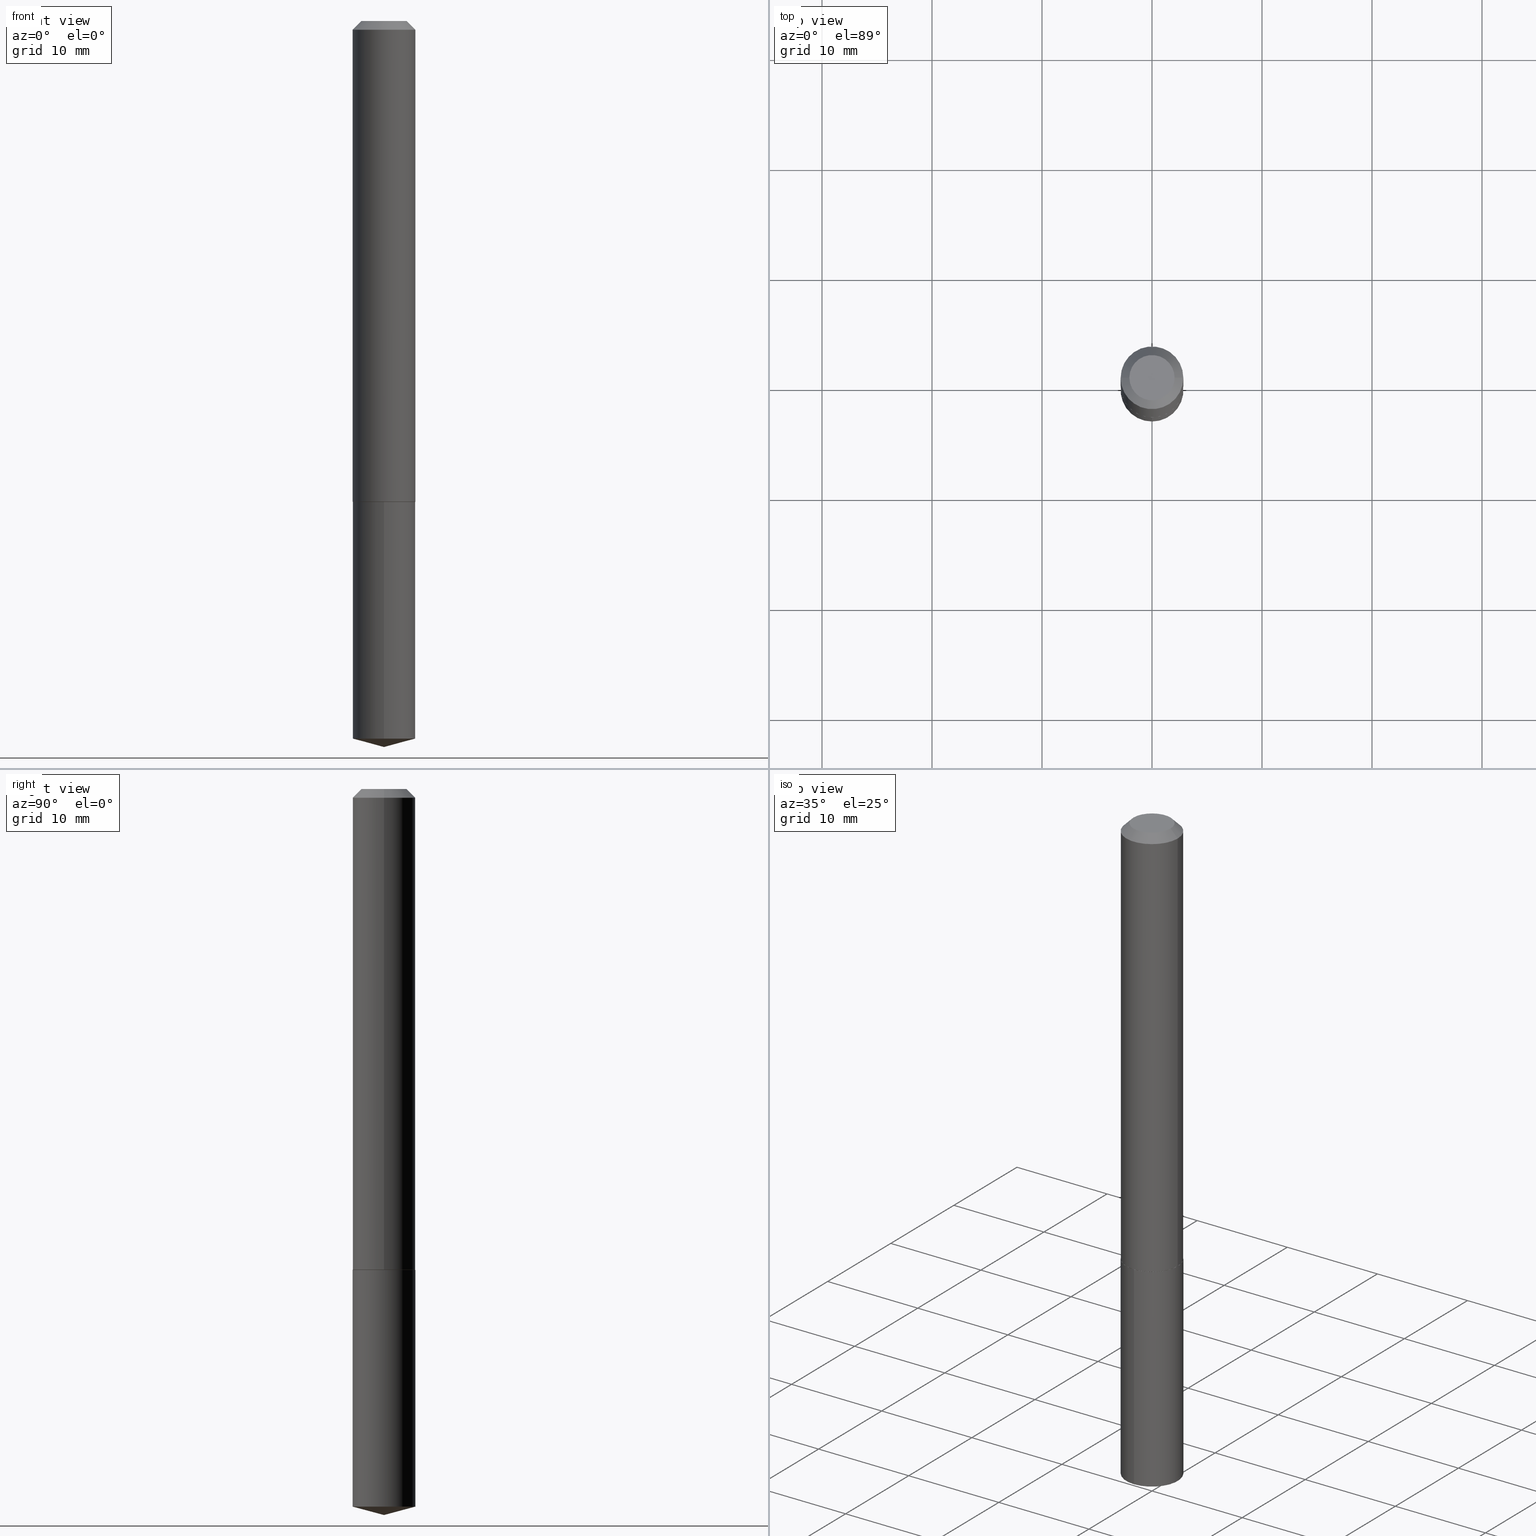
[diagram: canonical four-view strip — front | top / right | iso, engineering-drawing reading convention]
A machine part, canonical four-view strip (front | top / right | iso — engineering-drawing reading convention). The complete STEP part file that produces these views, byte-faithful:
ISO-10303-21;
HEADER;
FILE_DESCRIPTION (( 'STEP AP203' ),
    '1' );
FILE_NAME ('68992.STEP',
    '2024-04-23T14:08:13',
    ( '' ),
    ( '' ),
    'SwSTEP 2.0',
    'SolidWorks 2023',
    '' );
FILE_SCHEMA (( 'CONFIG_CONTROL_DESIGN' ));
ENDSEC;

DATA;
#1 = EDGE_CURVE ( 'NONE', #49, #203, #334, .T. ) ;
#2 = AXIS2_PLACEMENT_3D ( 'NONE', #128, #96, #64 ) ;
#3 = CLOSED_SHELL ( 'NONE', ( #29, #107, #121, #370, #163 ) ) ;
#4 = EDGE_LOOP ( 'NONE', ( #112, #20, #109, #178 ) ) ;
#5 = CARTESIAN_POINT ( 'NONE',  ( 6.354544332871978215E-29, -9.071924013680369190E-15, -2.598399999999999821 ) ) ;
#6 = EDGE_LOOP ( 'NONE', ( #259, #85 ) ) ;
#7 = DIRECTION ( 'NONE',  ( -0.7071067811865452413, 2.468850131082233000E-15, -0.7071067811865497932 ) ) ;
#8 = ADVANCED_FACE ( 'NONE', ( #348 ), #226, .T. ) ;
#9 = CIRCLE ( 'NONE', #62, 0.1122000000000002023 ) ;
#10 = FACE_OUTER_BOUND ( 'NONE', #6, .T. ) ;
#11 = DIRECTION ( 'NONE',  ( -2.445468806185136597E-29, 3.491481338843145583E-15, 1.000000000000000000 ) ) ;
#12 = ORIENTED_EDGE ( 'NONE', *, *, #209, .T. ) ;
#13 = CARTESIAN_POINT ( 'NONE',  ( -0.1122000000000000081, 6.743796205975501000E-16, -0.03125000000000021511 ) ) ;
#14 = ORIENTED_EDGE ( 'NONE', *, *, #209, .F. ) ;
#15 = AXIS2_PLACEMENT_3D ( 'NONE', #229, #283, #222 ) ;
#16 = CARTESIAN_POINT ( 'NONE',  ( 0.000000000000000000, 0.000000000000000000, 0.000000000000000000 ) ) ;
#17 = DIRECTION ( 'NONE',  ( 1.000000000000000000, -6.982962677686271444E-15, 0.000000000000000000 ) ) ;
#18 = EDGE_LOOP ( 'NONE', ( #75, #199, #264, #82 ) ) ;
#19 = PERSON_AND_ORGANIZATION ( #175, #213 ) ;
#20 = ORIENTED_EDGE ( 'NONE', *, *, #265, .T. ) ;
#21 =( CONVERSION_BASED_UNIT ( 'INCH', #356 ) LENGTH_UNIT ( ) NAMED_UNIT ( #306 ) );
#22 = DIRECTION ( 'NONE',  ( -2.445468806185136597E-29, 3.491481338843145583E-15, 1.000000000000000000 ) ) ;
#23 = ADVANCED_BREP_SHAPE_REPRESENTATION ( '68992', ( #137, #254, #382 ), #102 ) ;
#24 = ORIENTED_EDGE ( 'NONE', *, *, #333, .F. ) ;
#25 = AXIS2_PLACEMENT_3D ( 'NONE', #180, #116, #154 ) ;
#26 = LOCAL_TIME ( 10, 8, 13.00000000000000000, #248 ) ;
#27 = CARTESIAN_POINT ( 'NONE',  ( 4.207184534160907865E-29, -6.006744495345746138E-15, -1.720399999999999485 ) ) ;
#28 = CARTESIAN_POINT ( 'NONE',  ( 0.000000000000000000, 0.000000000000000000, 0.000000000000000000 ) ) ;
#29 = ADVANCED_FACE ( 'NONE', ( #271 ), #358, .T. ) ;
#30 = PLANE ( 'NONE',  #266 ) ;
#31 = VECTOR ( 'NONE', #367, 39.37007874015748143 ) ;
#32 = CIRCLE ( 'NONE', #236, 0.1117000000000003407 ) ;
#33 = DIRECTION ( 'NONE',  ( -6.982962677686265133E-15, -1.000000000000000000, 2.434802133390608632E-15 ) ) ;
#34 = CARTESIAN_POINT ( 'NONE',  ( -7.834884124363362890E-16, -0.1122000000000089870, -2.568336100609227568 ) ) ;
#35 = SHAPE_DEFINITION_REPRESENTATION ( #368, #23 ) ;
#36 = LINE ( 'NONE', #211, #360 ) ;
#37 = CARTESIAN_POINT ( 'NONE',  ( 0.1122000000000002023, -6.788487167112725412E-15, -1.719899999999999540 ) ) ;
#38 = VECTOR ( 'NONE', #377, 39.37007874015748854 ) ;
#39 = DIRECTION ( 'NONE',  ( -2.445560472934105133E-29, 3.491350066841275320E-15, 1.000000000000000000 ) ) ;
#40 = APPLICATION_CONTEXT ( 'configuration controlled 3d designs of mechanical parts and assemblies' ) ;
#41 = DIRECTION ( 'NONE',  ( -2.445560472934105133E-29, 3.491350066841275320E-15, 1.000000000000000000 ) ) ;
#42 = CC_DESIGN_DATE_AND_TIME_ASSIGNMENT ( #234, #247, ( #63 ) ) ;
#43 = ORIENTED_EDGE ( 'NONE', *, *, #160, .F. ) ;
#44 = FACE_OUTER_BOUND ( 'NONE', #4, .T. ) ;
#45 = FACE_OUTER_BOUND ( 'NONE', #52, .T. ) ;
#46 = AXIS2_PLACEMENT_3D ( 'NONE', #27, #210, #162 ) ;
#47 = APPROVAL_PERSON_ORGANIZATION ( #55, #337, #294 ) ;
#48 = CARTESIAN_POINT ( 'NONE',  ( -0.1122000000000002023, -5.207769805153490886E-15, -1.719899999999999540 ) ) ;
#49 = VERTEX_POINT ( 'NONE', #34 ) ;
#50 = EDGE_CURVE ( 'NONE', #318, #371, #277, .T. ) ;
#51 = DIRECTION ( 'NONE',  ( 1.000000000000000000, -6.982962677686267499E-15, 0.000000000000000000 ) ) ;
#52 = EDGE_LOOP ( 'NONE', ( #316, #12, #350 ) ) ;
#53 = CARTESIAN_POINT ( 'NONE',  ( 7.642090019328603538E-31, -1.091087918388490390E-16, -0.03125000000000021511 ) ) ;
#54 = ORIENTED_EDGE ( 'NONE', *, *, #274, .T. ) ;
#55 = PERSON_AND_ORGANIZATION ( #175, #213 ) ;
#56 = ORIENTED_EDGE ( 'NONE', *, *, #160, .T. ) ;
#57 = PERSON_AND_ORGANIZATION_ROLE ( 'classification_officer' ) ;
#58 = EDGE_CURVE ( 'NONE', #291, #170, #362, .T. ) ;
#59 = ORIENTED_EDGE ( 'NONE', *, *, #99, .F. ) ;
#60 = PERSON_AND_ORGANIZATION ( #175, #213 ) ;
#61 = DIRECTION ( 'NONE',  ( -1.000000000000000000, 6.982962677686266711E-15, 0.000000000000000000 ) ) ;
#62 = AXIS2_PLACEMENT_3D ( 'NONE', #276, #142, #17 ) ;
#63 = SECURITY_CLASSIFICATION ( '', '', #289 ) ;
#64 = DIRECTION ( 'NONE',  ( 1.000000000000000000, -6.982962677686266711E-15, 0.000000000000000000 ) ) ;
#65 = APPROVAL ( #297, 'UNSPECIFIED' ) ;
#66 = APPROVAL_STATUS ( 'not_yet_approved' ) ;
#67 = DIRECTION ( 'NONE',  ( 1.000000000000000000, -6.982962677686265922E-15, 4.876172822216040700E-29 ) ) ;
#68 = DIRECTION ( 'NONE',  ( -1.000000000000000000, 6.982962677686265922E-15, -4.876176775795935793E-29 ) ) ;
#69 = APPROVAL_PERSON_ORGANIZATION ( #113, #65, #123 ) ;
#70 = LINE ( 'NONE', #253, #125 ) ;
#71 = CARTESIAN_POINT ( 'NONE',  ( 6.354547098618619231E-29, -9.071924013680369190E-15, -2.598399999999999821 ) ) ;
#72 = DIRECTION ( 'NONE',  ( -6.982962677686266711E-15, -1.000000000000000000, 3.510303681827586791E-15 ) ) ;
#73 = DIRECTION ( 'NONE',  ( -6.745023994389845444E-15, -0.9659258262890684232, 0.2588190451025204619 ) ) ;
#74 = VECTOR ( 'NONE', #214, 39.37007874015748143 ) ;
#75 = ORIENTED_EDGE ( 'NONE', *, *, #223, .F. ) ;
#76 = CARTESIAN_POINT ( 'NONE',  ( 4.207184534160907865E-29, -6.006744495345746138E-15, -1.720399999999999485 ) ) ;
#77 = ORIENTED_EDGE ( 'NONE', *, *, #1, .T. ) ;
#78 = CARTESIAN_POINT ( 'NONE',  ( -0.1122000000000000081, -2.259824823734752725E-15, -0.03125000000000021511 ) ) ;
#79 = ORIENTED_EDGE ( 'NONE', *, *, #58, .F. ) ;
#80 = DIRECTION ( 'NONE',  ( -2.445468806185136597E-29, 3.491481338843145583E-15, 1.000000000000000000 ) ) ;
#81 = LINE ( 'NONE', #159, #74 ) ;
#82 = ORIENTED_EDGE ( 'NONE', *, *, #311, .F. ) ;
#83 = AXIS2_PLACEMENT_3D ( 'NONE', #232, #249, #72 ) ;
#84 = ADVANCED_FACE ( 'NONE', ( #127 ), #328, .T. ) ;
#85 = ORIENTED_EDGE ( 'NONE', *, *, #374, .F. ) ;
#86 = APPROVAL_DATE_TIME ( #88, #337 ) ;
#87 = ORIENTED_EDGE ( 'NONE', *, *, #300, .T. ) ;
#88 = DATE_AND_TIME ( #238, #185 ) ;
#89 = DIRECTION ( 'NONE',  ( -2.445468806185136597E-29, 3.491481338843145583E-15, 1.000000000000000000 ) ) ;
#90 = AXIS2_PLACEMENT_3D ( 'NONE', #110, #139, #190 ) ;
#91 = LOCAL_TIME ( 10, 8, 13.00000000000000000, #379 ) ;
#92 = DATE_AND_TIME ( #97, #26 ) ;
#93 = DIRECTION ( 'NONE',  ( 2.445560472934104853E-29, -3.491350066841275320E-15, -1.000000000000000000 ) ) ;
#94 = EDGE_CURVE ( 'NONE', #293, #346, #258, .T. ) ;
#95 = AXIS2_PLACEMENT_3D ( 'NONE', #216, #336, #68 ) ;
#96 = DIRECTION ( 'NONE',  ( -2.445468806185136597E-29, 3.491481338843145583E-15, 1.000000000000000000 ) ) ;
#97 = CALENDAR_DATE ( 2024, 23, 4 ) ;
#98 = DIRECTION ( 'NONE',  ( -0.7071067811865232589, 7.493145998870265808E-15, 0.7071067811865715536 ) ) ;
#99 = EDGE_CURVE ( 'NONE', #371, #318, #9, .T. ) ;
#100 = CARTESIAN_POINT ( 'NONE',  ( 6.280863545384714568E-29, -8.967186256884906967E-15, -2.568336100609228456 ) ) ;
#101 = CIRCLE ( 'NONE', #90, 0.1122000000000000081 ) ;
#102 =( GEOMETRIC_REPRESENTATION_CONTEXT ( 3 ) GLOBAL_UNCERTAINTY_ASSIGNED_CONTEXT ( ( #383 ) ) GLOBAL_UNIT_ASSIGNED_CONTEXT ( ( #21, #324, #376 ) ) REPRESENTATION_CONTEXT ( 'NONE', 'WORKASPACE' ) );
#103 = CARTESIAN_POINT ( 'NONE',  ( 0.1122000000000000081, -8.925972042752483013E-16, -0.03125000000000021511 ) ) ;
#104 = CYLINDRICAL_SURFACE ( 'NONE', #321, 0.1122000000000000081 ) ;
#105 = DIRECTION ( 'NONE',  ( -6.982962677686266711E-15, -1.000000000000000000, 3.510303681827586791E-15 ) ) ;
#106 = CARTESIAN_POINT ( 'NONE',  ( 4.207184534160907865E-29, -6.006744495345746138E-15, -1.720399999999999485 ) ) ;
#107 = ADVANCED_FACE ( 'NONE', ( #150 ), #372, .T. ) ;
#108 = AXIS2_PLACEMENT_3D ( 'NONE', #260, #80, #231 ) ;
#109 = ORIENTED_EDGE ( 'NONE', *, *, #333, .T. ) ;
#110 = CARTESIAN_POINT ( 'NONE',  ( 4.207184534160907865E-29, -6.006744495345746138E-15, -1.720399999999999485 ) ) ;
#111 = EDGE_CURVE ( 'NONE', #322, #371, #261, .T. ) ;
#112 = ORIENTED_EDGE ( 'NONE', *, *, #145, .F. ) ;
#113 = PERSON_AND_ORGANIZATION ( #175, #213 ) ;
#114 = ORIENTED_EDGE ( 'NONE', *, *, #223, .T. ) ;
#115 = CALENDAR_DATE ( 2024, 23, 4 ) ;
#116 = DIRECTION ( 'NONE',  ( -2.445560472934105133E-29, 3.491350066841275320E-15, 1.000000000000000000 ) ) ;
#117 = CONICAL_SURFACE ( 'NONE', #83, 146.9311341562572579, 1.308996938995750980 ) ;
#118 = CONICAL_SURFACE ( 'NONE', #304, 0.1122000000000000081, 0.7853981633974450594 ) ;
#119 = VERTEX_POINT ( 'NONE', #345 ) ;
#120 = PERSON_AND_ORGANIZATION ( #175, #213 ) ;
#121 = ADVANCED_FACE ( 'NONE', ( #45 ), #117, .T. ) ;
#122 = DIRECTION ( 'NONE',  ( 1.000000000000000000, -6.982962677686271444E-15, 0.000000000000000000 ) ) ;
#123 = APPROVAL_ROLE ( '' ) ;
#124 = DIRECTION ( 'NONE',  ( 1.000000000000000000, -6.982962677686266711E-15, 0.000000000000000000 ) ) ;
#125 = VECTOR ( 'NONE', #73, 39.37007874015748143 ) ;
#126 = APPROVAL_ROLE ( '' ) ;
#127 = FACE_OUTER_BOUND ( 'NONE', #384, .T. ) ;
#128 = CARTESIAN_POINT ( 'NONE',  ( 7.642090019328603538E-31, -1.091087918388490390E-16, -0.03125000000000021511 ) ) ;
#129 = VECTOR ( 'NONE', #218, 39.37007874015748143 ) ;
#130 = CARTESIAN_POINT ( 'NONE',  ( -8.992752175383544669E-28, 1.283825771869626987E-13, 36.77167874015748339 ) ) ;
#131 = EDGE_LOOP ( 'NONE', ( #77, #355, #43, #24 ) ) ;
#132 = APPLICATION_CONTEXT ( 'configuration controlled 3d designs of mechanical parts and assemblies' ) ;
#133 = ADVANCED_FACE ( 'NONE', ( #310 ), #298, .T. ) ;
#134 = DIRECTION ( 'NONE',  ( -1.000000000000000000, 6.982962677686266711E-15, 0.000000000000000000 ) ) ;
#135 = CARTESIAN_POINT ( 'NONE',  ( -0.1122000000000001052, 7.972289495228331561E-16, -5.519045171266009325E-30 ) ) ;
#136 = CIRCLE ( 'NONE', #354, 0.1117000000000003407 ) ;
#137 = MANIFOLD_SOLID_BREP ( 'Body-Move/Copy2[1]', #3 ) ;
#138 = EDGE_CURVE ( 'NONE', #346, #293, #192, .T. ) ;
#139 = DIRECTION ( 'NONE',  ( -2.445560472934105133E-29, 3.491350066841275320E-15, 1.000000000000000000 ) ) ;
#140 = CC_DESIGN_PERSON_AND_ORGANIZATION_ASSIGNMENT ( #19, #57, ( #63 ) ) ;
#141 = DIRECTION ( 'NONE',  ( -2.445468806185136877E-29, 3.491481338843145188E-15, 1.000000000000000000 ) ) ;
#142 = DIRECTION ( 'NONE',  ( -2.445468806185136597E-29, 3.491481338843145583E-15, 1.000000000000000000 ) ) ;
#143 = ORIENTED_EDGE ( 'NONE', *, *, #50, .F. ) ;
#144 = LINE ( 'NONE', #135, #320 ) ;
#145 = EDGE_CURVE ( 'NONE', #203, #119, #81, .T. ) ;
#146 = AXIS2_PLACEMENT_3D ( 'NONE', #270, #388, #124 ) ;
#147 = CC_DESIGN_SECURITY_CLASSIFICATION ( #63, ( #339 ) ) ;
#148 = ORIENTED_EDGE ( 'NONE', *, *, #296, .T. ) ;
#149 = COORDINATED_UNIVERSAL_TIME_OFFSET ( 5, 0, .BEHIND. ) ;
#150 = FACE_OUTER_BOUND ( 'NONE', #262, .T. ) ;
#151 = CC_DESIGN_PERSON_AND_ORGANIZATION_ASSIGNMENT ( #329, #179, ( #339 ) ) ;
#152 = ORIENTED_EDGE ( 'NONE', *, *, #374, .T. ) ;
#153 = COORDINATED_UNIVERSAL_TIME_OFFSET ( 5, 0, .BEHIND. ) ;
#154 = DIRECTION ( 'NONE',  ( -6.982962677686265133E-15, -1.000000000000000000, 4.869604266781217263E-15 ) ) ;
#155 = VERTEX_POINT ( 'NONE', #5 ) ;
#156 = DIRECTION ( 'NONE',  ( 1.000000000000000000, 0.000000000000000000, 0.000000000000000000 ) ) ;
#157 = VECTOR ( 'NONE', #141, 39.37007874015748143 ) ;
#158 = LOCAL_TIME ( 10, 8, 13.00000000000000000, #269 ) ;
#159 = CARTESIAN_POINT ( 'NONE',  ( 7.972289495228743741E-16, 0.1121999999999939851, -1.720399999999999707 ) ) ;
#160 = EDGE_CURVE ( 'NONE', #224, #119, #168, .T. ) ;
#161 = DIRECTION ( 'NONE',  ( 6.982962677686265922E-15, 1.000000000000000000, -3.491350066841275320E-15 ) ) ;
#162 = DIRECTION ( 'NONE',  ( -6.982962677686265133E-15, -1.000000000000000000, 2.434802133390608632E-15 ) ) ;
#163 = ADVANCED_FACE ( 'NONE', ( #273 ), #30, .F. ) ;
#164 = PLANE ( 'NONE',  #95 ) ;
#165 = ORIENTED_EDGE ( 'NONE', *, *, #280, .F. ) ;
#166 = CARTESIAN_POINT ( 'NONE',  ( -0.08094999999999999418, 6.198252246781266344E-16, 2.388061258295906424E-19 ) ) ;
#167 = CARTESIAN_POINT ( 'NONE',  ( -5.839929314523198503E-48, 8.337871319499114970E-34, 2.388061258337343288E-19 ) ) ;
#168 = CIRCLE ( 'NONE', #299, 0.1122000000000000081 ) ;
#169 = DIRECTION ( 'NONE',  ( -2.445560472934105133E-29, 3.491350066841275320E-15, 1.000000000000000000 ) ) ;
#170 = VERTEX_POINT ( 'NONE', #302 ) ;
#171 = CARTESIAN_POINT ( 'NONE',  ( -7.834884124363568980E-16, -0.1122000000000060171, -1.720399999999999263 ) ) ;
#172 = DIRECTION ( 'NONE',  ( -2.445560472934105133E-29, 3.491350066841275320E-15, 1.000000000000000000 ) ) ;
#173 = ORIENTED_EDGE ( 'NONE', *, *, #1, .F. ) ;
#174 = FACE_OUTER_BOUND ( 'NONE', #18, .T. ) ;
#175 = PERSON ( 'UNSPECIFIED', 'UNSPECIFIED', 'UNSPECIFIED', ('UNSPECIFIED'), ('UNSPECIFIED'), ('UNSPECIFIED') ) ;
#176 = PRODUCT_RELATED_PRODUCT_CATEGORY ( 'detail', '', ( #308 ) ) ;
#177 = CONICAL_SURFACE ( 'NONE', #108, 0.1122000000000002023, 0.7853981633974141952 ) ;
#178 = ORIENTED_EDGE ( 'NONE', *, *, #278, .F. ) ;
#179 = PERSON_AND_ORGANIZATION_ROLE ( 'design_supplier' ) ;
#180 = CARTESIAN_POINT ( 'NONE',  ( 6.280863545384714568E-29, -8.967186256884906967E-15, -2.568336100609228456 ) ) ;
#181 = EDGE_LOOP ( 'NONE', ( #380, #364, #87, #375 ) ) ;
#182 = DATE_AND_TIME ( #327, #91 ) ;
#183 =( LENGTH_UNIT ( ) NAMED_UNIT ( * ) SI_UNIT ( $, .METRE. ) );
#184 = DIRECTION ( 'NONE',  ( -2.445468806185136597E-29, 3.491481338843145583E-15, 1.000000000000000000 ) ) ;
#185 = LOCAL_TIME ( 10, 8, 13.00000000000000000, #149 ) ;
#186 = CARTESIAN_POINT ( 'NONE',  ( 4.207184534160907865E-29, -6.006744495345746138E-15, -1.720399999999999485 ) ) ;
#187 = EDGE_CURVE ( 'NONE', #378, #318, #36, .T. ) ;
#188 = CIRCLE ( 'NONE', #295, 0.1122000000000000081 ) ;
#189 = DIRECTION ( 'NONE',  ( -2.445468806185136597E-29, 3.491481338843145583E-15, 1.000000000000000000 ) ) ;
#190 = DIRECTION ( 'NONE',  ( -6.982962677686265133E-15, -1.000000000000000000, 2.434802133390608632E-15 ) ) ;
#191 = LINE ( 'NONE', #71, #129 ) ;
#192 = CIRCLE ( 'NONE', #146, 0.1122000000000000081 ) ;
#193 = CC_DESIGN_APPROVAL ( #65, ( #339 ) ) ;
#194 = PLANE ( 'NONE',  #15 ) ;
#195 = ORIENTED_EDGE ( 'NONE', *, *, #58, .T. ) ;
#196 = DIRECTION ( 'NONE',  ( -2.445468806185136597E-29, 3.491481338843145583E-15, 1.000000000000000000 ) ) ;
#197 = ORIENTED_EDGE ( 'NONE', *, *, #311, .T. ) ;
#198 = VECTOR ( 'NONE', #7, 39.37007874015748143 ) ;
#199 = ORIENTED_EDGE ( 'NONE', *, *, #280, .T. ) ;
#200 = APPLICATION_PROTOCOL_DEFINITION ( 'international standard', 'config_control_design', 1994, #132 ) ;
#201 = ADVANCED_FACE ( 'NONE', ( #275 ), #164, .F. ) ;
#202 = ORIENTED_EDGE ( 'NONE', *, *, #187, .T. ) ;
#203 = VERTEX_POINT ( 'NONE', #279 ) ;
#204 = PERSON_AND_ORGANIZATION_ROLE ( 'creator' ) ;
#205 = CLOSED_SHELL ( 'NONE', ( #381, #363, #389, #290, #84, #133, #8, #201 ) ) ;
#206 = CC_DESIGN_APPROVAL ( #337, ( #305 ) ) ;
#207 = DATE_TIME_ROLE ( 'creation_date' ) ;
#208 = DIRECTION ( 'NONE',  ( 1.000000000000000000, -6.982962677686271444E-15, 0.000000000000000000 ) ) ;
#209 = EDGE_CURVE ( 'NONE', #155, #49, #70, .T. ) ;
#210 = DIRECTION ( 'NONE',  ( -2.445560472934105133E-29, 3.491350066841275320E-15, 1.000000000000000000 ) ) ;
#211 = CARTESIAN_POINT ( 'NONE',  ( -0.1122000000000002023, -5.207769805153490886E-15, -1.719899999999999540 ) ) ;
#212 = AXIS2_PLACEMENT_3D ( 'NONE', #28, #22, #235 ) ;
#213 = ORGANIZATION ( 'UNSPECIFIED', 'UNSPECIFIED', '' ) ;
#214 = DIRECTION ( 'NONE',  ( -2.445560472934105133E-29, 3.491350066841275320E-15, 1.000000000000000000 ) ) ;
#215 = PERSON_AND_ORGANIZATION ( #175, #213 ) ;
#216 = CARTESIAN_POINT ( 'NONE',  ( -2.919964657261599251E-48, 4.168935659749557485E-34, 1.194030629168671644E-19 ) ) ;
#217 = AXIS2_PLACEMENT_3D ( 'NONE', #130, #172, #105 ) ;
#218 = DIRECTION ( 'NONE',  ( 6.863315791527699781E-15, 0.9659258262890701996, 0.2588190451025136896 ) ) ;
#219 = LOCAL_TIME ( 10, 8, 13.00000000000000000, #153 ) ;
#220 = CC_DESIGN_PERSON_AND_ORGANIZATION_ASSIGNMENT ( #120, #240, ( #308 ) ) ;
#221 = CARTESIAN_POINT ( 'NONE',  ( -7.834884124363568980E-16, -0.1122000000000060171, -1.720399999999999263 ) ) ;
#222 = DIRECTION ( 'NONE',  ( 1.000000000000000000, -6.982962677686265922E-15, 4.876176775795935793E-29 ) ) ;
#223 = EDGE_CURVE ( 'NONE', #170, #291, #312, .T. ) ;
#224 = VERTEX_POINT ( 'NONE', #171 ) ;
#225 = DIRECTION ( 'NONE',  ( -6.982962677686265133E-15, -1.000000000000000000, 2.434802133390608632E-15 ) ) ;
#226 = CONICAL_SURFACE ( 'NONE', #251, 0.1122000000000000081, 0.7853981633974450594 ) ;
#227 = AXIS2_PLACEMENT_3D ( 'NONE', #245, #330, #122 ) ;
#228 = EDGE_LOOP ( 'NONE', ( #165, #79, #197, #326 ) ) ;
#229 = CARTESIAN_POINT ( 'NONE',  ( 4.207184534160907865E-29, -6.006744495345746138E-15, -1.720399999999999485 ) ) ;
#230 = ORIENTED_EDGE ( 'NONE', *, *, #138, .F. ) ;
#231 = DIRECTION ( 'NONE',  ( 1.000000000000000000, -6.982962677686271444E-15, 0.000000000000000000 ) ) ;
#232 = CARTESIAN_POINT ( 'NONE',  ( -8.992752175383544669E-28, 1.283825771869626987E-13, 36.77167874015748339 ) ) ;
#233 = ORIENTED_EDGE ( 'NONE', *, *, #111, .T. ) ;
#234 = DATE_AND_TIME ( #115, #219 ) ;
#235 = DIRECTION ( 'NONE',  ( 1.000000000000000000, -6.982962677686266711E-15, 4.876176775795935232E-29 ) ) ;
#236 = AXIS2_PLACEMENT_3D ( 'NONE', #76, #315, #51 ) ;
#237 = ORIENTED_EDGE ( 'NONE', *, *, #300, .F. ) ;
#238 = CALENDAR_DATE ( 2024, 23, 4 ) ;
#239 = ORIENTED_EDGE ( 'NONE', *, *, #111, .F. ) ;
#240 = PERSON_AND_ORGANIZATION_ROLE ( 'design_owner' ) ;
#241 = CARTESIAN_POINT ( 'NONE',  ( 4.205961799757815063E-29, -6.004998754676324634E-15, -1.719899999999999540 ) ) ;
#242 = APPROVAL_DATE_TIME ( #319, #65 ) ;
#243 = CC_DESIGN_DATE_AND_TIME_ASSIGNMENT ( #182, #207, ( #305 ) ) ;
#244 = AXIS2_PLACEMENT_3D ( 'NONE', #331, #184, #67 ) ;
#245 = CARTESIAN_POINT ( 'NONE',  ( 4.205961799757815063E-29, -6.004998754676324634E-15, -1.719899999999999540 ) ) ;
#246 = CC_DESIGN_APPROVAL ( #325, ( #63 ) ) ;
#247 = DATE_TIME_ROLE ( 'classification_date' ) ;
#248 = COORDINATED_UNIVERSAL_TIME_OFFSET ( 5, 0, .BEHIND. ) ;
#249 = DIRECTION ( 'NONE',  ( -2.445560472934105133E-29, 3.491350066841275320E-15, 1.000000000000000000 ) ) ;
#250 = CARTESIAN_POINT ( 'NONE',  ( 0.000000000000000000, 0.000000000000000000, 0.000000000000000000 ) ) ;
#251 = AXIS2_PLACEMENT_3D ( 'NONE', #323, #268, #61 ) ;
#252 = DIRECTION ( 'NONE',  ( 0.7071067811865452413, -7.319954787623248157E-15, -0.7071067811865497932 ) ) ;
#253 = CARTESIAN_POINT ( 'NONE',  ( 6.354228925922127120E-29, -9.072375694384404603E-15, -2.598399999999999821 ) ) ;
#254 = MANIFOLD_SOLID_BREP ( 'Body-Move/Copy2[2]', #205 ) ;
#255 = CYLINDRICAL_SURFACE ( 'NONE', #335, 0.1122000000000001052 ) ;
#256 = ORIENTED_EDGE ( 'NONE', *, *, #278, .T. ) ;
#257 = LINE ( 'NONE', #221, #31 ) ;
#258 = CIRCLE ( 'NONE', #2, 0.1122000000000000081 ) ;
#259 = ORIENTED_EDGE ( 'NONE', *, *, #342, .F. ) ;
#260 = CARTESIAN_POINT ( 'NONE',  ( 4.205961799757815063E-29, -6.004998754676324634E-15, -1.719899999999999540 ) ) ;
#261 = LINE ( 'NONE', #37, #38 ) ;
#262 = EDGE_LOOP ( 'NONE', ( #14, #54, #173 ) ) ;
#263 = DIRECTION ( 'NONE',  ( 0.000000000000000000, 0.000000000000000000, 1.000000000000000000 ) ) ;
#264 = ORIENTED_EDGE ( 'NONE', *, *, #138, .T. ) ;
#265 = EDGE_CURVE ( 'NONE', #203, #49, #188, .T. ) ;
#266 = AXIS2_PLACEMENT_3D ( 'NONE', #361, #93, #161 ) ;
#267 = APPROVAL_PERSON_ORGANIZATION ( #215, #325, #126 ) ;
#268 = DIRECTION ( 'NONE',  ( 2.445468806185136597E-29, -3.491481338843145583E-15, -1.000000000000000000 ) ) ;
#269 = COORDINATED_UNIVERSAL_TIME_OFFSET ( 5, 0, .BEHIND. ) ;
#270 = CARTESIAN_POINT ( 'NONE',  ( 7.642090019328603538E-31, -1.091087918388490390E-16, -0.03125000000000021511 ) ) ;
#271 = FACE_OUTER_BOUND ( 'NONE', #131, .T. ) ;
#272 = AXIS2_PLACEMENT_3D ( 'NONE', #167, #11, #282 ) ;
#273 = FACE_OUTER_BOUND ( 'NONE', #353, .T. ) ;
#274 = EDGE_CURVE ( 'NONE', #155, #203, #191, .T. ) ;
#275 = FACE_OUTER_BOUND ( 'NONE', #288, .T. ) ;
#276 = CARTESIAN_POINT ( 'NONE',  ( 4.205961799757815063E-29, -6.004998754676324634E-15, -1.719899999999999540 ) ) ;
#277 = CIRCLE ( 'NONE', #227, 0.1122000000000002023 ) ;
#278 = EDGE_CURVE ( 'NONE', #119, #224, #101, .T. ) ;
#279 = CARTESIAN_POINT ( 'NONE',  ( 7.972289495228953775E-16, 0.1121999999999910708, -2.568336100609228900 ) ) ;
#280 = EDGE_CURVE ( 'NONE', #170, #346, #341, .T. ) ;
#281 = LINE ( 'NONE', #13, #198 ) ;
#282 = DIRECTION ( 'NONE',  ( 1.000000000000000000, -6.982962677686265922E-15, 4.876172822216040700E-29 ) ) ;
#283 = DIRECTION ( 'NONE',  ( -2.438088387897960049E-29, 3.491481338843145188E-15, 1.000000000000000000 ) ) ;
#284 = EDGE_LOOP ( 'NONE', ( #314, #148, #230, #237 ) ) ;
#285 = LINE ( 'NONE', #344, #157 ) ;
#286 = EDGE_LOOP ( 'NONE', ( #343, #202, #59, #239 ) ) ;
#287 = DIRECTION ( 'NONE',  ( 2.445468806185136597E-29, -3.491481338843145583E-15, -1.000000000000000000 ) ) ;
#288 = EDGE_LOOP ( 'NONE', ( #195, #114 ) ) ;
#289 = SECURITY_CLASSIFICATION_LEVEL ( 'unclassified' ) ;
#290 = ADVANCED_FACE ( 'NONE', ( #10 ), #194, .F. ) ;
#291 = VERTEX_POINT ( 'NONE', #166 ) ;
#292 = APPLICATION_PROTOCOL_DEFINITION ( 'international standard', 'config_control_design', 1994, #40 ) ;
#293 = VERTEX_POINT ( 'NONE', #78 ) ;
#294 = APPROVAL_ROLE ( '' ) ;
#295 = AXIS2_PLACEMENT_3D ( 'NONE', #100, #41, #373 ) ;
#296 = EDGE_CURVE ( 'NONE', #318, #293, #144, .T. ) ;
#297 = APPROVAL_STATUS ( 'not_yet_approved' ) ;
#298 = CYLINDRICAL_SURFACE ( 'NONE', #212, 0.1122000000000001052 ) ;
#299 = AXIS2_PLACEMENT_3D ( 'NONE', #186, #39, #33 ) ;
#300 = EDGE_CURVE ( 'NONE', #371, #346, #285, .T. ) ;
#301 = APPROVAL_STATUS ( 'not_yet_approved' ) ;
#302 = CARTESIAN_POINT ( 'NONE',  ( 0.08094999999999999418, -7.171069900542102065E-16, 2.388061258382177493E-19 ) ) ;
#303 = VECTOR ( 'NONE', #252, 39.37007874015748143 ) ;
#304 = AXIS2_PLACEMENT_3D ( 'NONE', #53, #287, #134 ) ;
#305 = PRODUCT_DEFINITION ( 'UNKNOWN', '', #339, #390 ) ;
#306 = DIMENSIONAL_EXPONENTS ( 1.000000000000000000, 0.000000000000000000, 0.000000000000000000, 0.000000000000000000, 0.000000000000000000, 0.000000000000000000, 0.000000000000000000 ) ;
#307 = FACE_OUTER_BOUND ( 'NONE', #284, .T. ) ;
#308 = PRODUCT ( '68992', '68992', '', ( #385 ) ) ;
#309 = DIRECTION ( 'NONE',  ( 1.000000000000000000, -6.982962677686267499E-15, 0.000000000000000000 ) ) ;
#310 = FACE_OUTER_BOUND ( 'NONE', #181, .T. ) ;
#311 = EDGE_CURVE ( 'NONE', #291, #293, #281, .T. ) ;
#312 = CIRCLE ( 'NONE', #272, 0.08094999999999999418 ) ;
#313 = CARTESIAN_POINT ( 'NONE',  ( 4.207184534160907865E-29, -6.006744495345746138E-15, -1.720399999999999485 ) ) ;
#314 = ORIENTED_EDGE ( 'NONE', *, *, #99, .T. ) ;
#315 = DIRECTION ( 'NONE',  ( -2.445468806185136597E-29, 3.491481338843145583E-15, 1.000000000000000000 ) ) ;
#316 = ORIENTED_EDGE ( 'NONE', *, *, #274, .F. ) ;
#317 = CARTESIAN_POINT ( 'NONE',  ( -0.1117000000000003407, -5.210419032327601299E-15, -1.720399999999999485 ) ) ;
#318 = VERTEX_POINT ( 'NONE', #48 ) ;
#319 = DATE_AND_TIME ( #387, #158 ) ;
#320 = VECTOR ( 'NONE', #366, 39.37007874015748143 ) ;
#321 = AXIS2_PLACEMENT_3D ( 'NONE', #313, #169, #225 ) ;
#322 = VERTEX_POINT ( 'NONE', #349 ) ;
#323 = CARTESIAN_POINT ( 'NONE',  ( 7.642090019328603538E-31, -1.091087918388490390E-16, -0.03125000000000021511 ) ) ;
#324 =( NAMED_UNIT ( * ) PLANE_ANGLE_UNIT ( ) SI_UNIT ( $, .RADIAN. ) );
#325 = APPROVAL ( #301, 'UNSPECIFIED' ) ;
#326 = ORIENTED_EDGE ( 'NONE', *, *, #94, .T. ) ;
#327 = CALENDAR_DATE ( 2024, 23, 4 ) ;
#328 = CONICAL_SURFACE ( 'NONE', #338, 0.1122000000000002023, 0.7853981633974141952 ) ;
#329 = PERSON_AND_ORGANIZATION ( #175, #213 ) ;
#330 = DIRECTION ( 'NONE',  ( -2.445468806185136597E-29, 3.491481338843145583E-15, 1.000000000000000000 ) ) ;
#331 = CARTESIAN_POINT ( 'NONE',  ( -5.839929314523198503E-48, 8.337871319499114970E-34, 2.388061258337343288E-19 ) ) ;
#332 = APPROVAL_DATE_TIME ( #92, #325 ) ;
#333 = EDGE_CURVE ( 'NONE', #49, #224, #257, .T. ) ;
#334 = CIRCLE ( 'NONE', #25, 0.1122000000000000081 ) ;
#335 = AXIS2_PLACEMENT_3D ( 'NONE', #250, #189, #369 ) ;
#336 = DIRECTION ( 'NONE',  ( 2.438088387897960049E-29, -3.491481338843145188E-15, -1.000000000000000000 ) ) ;
#337 = APPROVAL ( #66, 'UNSPECIFIED' ) ;
#338 = AXIS2_PLACEMENT_3D ( 'NONE', #241, #89, #208 ) ;
#339 = PRODUCT_DEFINITION_FORMATION_WITH_SPECIFIED_SOURCE ( 'ANY', '', #308, .NOT_KNOWN. ) ;
#340 = CARTESIAN_POINT ( 'NONE',  ( 0.1122000000000000081, -8.788566671888148389E-16, -0.03125000000000021511 ) ) ;
#341 = LINE ( 'NONE', #340, #303 ) ;
#342 = EDGE_CURVE ( 'NONE', #322, #378, #136, .T. ) ;
#343 = ORIENTED_EDGE ( 'NONE', *, *, #342, .T. ) ;
#344 = CARTESIAN_POINT ( 'NONE',  ( 0.1122000000000001052, -7.834884124363998909E-16, 5.471070342443044449E-30 ) ) ;
#345 = CARTESIAN_POINT ( 'NONE',  ( 7.972289495228952789E-16, 0.1121999999999939851, -1.720399999999999707 ) ) ;
#346 = VERTEX_POINT ( 'NONE', #103 ) ;
#347 = CARTESIAN_POINT ( 'NONE',  ( 0.1122000000000002023, -6.788487167112725412E-15, -1.719899999999999540 ) ) ;
#348 = FACE_OUTER_BOUND ( 'NONE', #228, .T. ) ;
#349 = CARTESIAN_POINT ( 'NONE',  ( 0.1117000000000003407, -6.786741426443304698E-15, -1.720399999999999485 ) ) ;
#350 = ORIENTED_EDGE ( 'NONE', *, *, #265, .F. ) ;
#351 = CC_DESIGN_PERSON_AND_ORGANIZATION_ASSIGNMENT ( #60, #204, ( #305 ) ) ;
#352 = PERSON_AND_ORGANIZATION_ROLE ( 'creator' ) ;
#353 = EDGE_LOOP ( 'NONE', ( #56, #256 ) ) ;
#354 = AXIS2_PLACEMENT_3D ( 'NONE', #106, #196, #309 ) ;
#355 = ORIENTED_EDGE ( 'NONE', *, *, #145, .T. ) ;
#356 = LENGTH_MEASURE_WITH_UNIT ( LENGTH_MEASURE( 0.02539999999999999897 ), #183 );
#357 = ORIENTED_EDGE ( 'NONE', *, *, #187, .F. ) ;
#358 = CYLINDRICAL_SURFACE ( 'NONE', #46, 0.1122000000000000081 ) ;
#359 = PERSON_AND_ORGANIZATION ( #175, #213 ) ;
#360 = VECTOR ( 'NONE', #98, 39.37007874015748854 ) ;
#361 = CARTESIAN_POINT ( 'NONE',  ( 4.207184534160907865E-29, -6.006744495345746138E-15, -1.720399999999999485 ) ) ;
#362 = CIRCLE ( 'NONE', #244, 0.08094999999999999418 ) ;
#363 = ADVANCED_FACE ( 'NONE', ( #307 ), #255, .T. ) ;
#364 = ORIENTED_EDGE ( 'NONE', *, *, #50, .T. ) ;
#365 = FACE_OUTER_BOUND ( 'NONE', #286, .T. ) ;
#366 = DIRECTION ( 'NONE',  ( -2.445468806185136877E-29, 3.491481338843145188E-15, 1.000000000000000000 ) ) ;
#367 = DIRECTION ( 'NONE',  ( -2.445560472934105133E-29, 3.491350066841275320E-15, 1.000000000000000000 ) ) ;
#368 = PRODUCT_DEFINITION_SHAPE ( 'NONE', 'NONE',  #305 ) ;
#369 = DIRECTION ( 'NONE',  ( 1.000000000000000000, -6.982962677686266711E-15, 4.876176775795935232E-29 ) ) ;
#370 = ADVANCED_FACE ( 'NONE', ( #44 ), #104, .T. ) ;
#371 = VERTEX_POINT ( 'NONE', #347 ) ;
#372 = CONICAL_SURFACE ( 'NONE', #217, 146.9311341562572579, 1.308996938995750980 ) ;
#373 = DIRECTION ( 'NONE',  ( -6.982962677686265133E-15, -1.000000000000000000, 4.869604266781217263E-15 ) ) ;
#374 = EDGE_CURVE ( 'NONE', #378, #322, #32, .T. ) ;
#375 = ORIENTED_EDGE ( 'NONE', *, *, #94, .F. ) ;
#376 =( NAMED_UNIT ( * ) SI_UNIT ( $, .STERADIAN. ) SOLID_ANGLE_UNIT ( ) );
#377 = DIRECTION ( 'NONE',  ( 0.7071067811865232589, -2.468850131082003836E-15, 0.7071067811865715536 ) ) ;
#378 = VERTEX_POINT ( 'NONE', #317 ) ;
#379 = COORDINATED_UNIVERSAL_TIME_OFFSET ( 5, 0, .BEHIND. ) ;
#380 = ORIENTED_EDGE ( 'NONE', *, *, #296, .F. ) ;
#381 = ADVANCED_FACE ( 'NONE', ( #174 ), #118, .T. ) ;
#382 = AXIS2_PLACEMENT_3D ( 'NONE', #16, #263, #156 ) ;
#383 = UNCERTAINTY_MEASURE_WITH_UNIT (LENGTH_MEASURE( 1.000000000000000082E-05 ), #21, 'distance_accuracy_value', 'NONE');
#384 = EDGE_LOOP ( 'NONE', ( #357, #152, #233, #143 ) ) ;
#385 = MECHANICAL_CONTEXT ( 'NONE', #40, 'mechanical' ) ;
#386 = CC_DESIGN_PERSON_AND_ORGANIZATION_ASSIGNMENT ( #359, #352, ( #339 ) ) ;
#387 = CALENDAR_DATE ( 2024, 23, 4 ) ;
#388 = DIRECTION ( 'NONE',  ( -2.445468806185136597E-29, 3.491481338843145583E-15, 1.000000000000000000 ) ) ;
#389 = ADVANCED_FACE ( 'NONE', ( #365 ), #177, .T. ) ;
#390 = DESIGN_CONTEXT ( 'detailed design', #132, 'design' ) ;
ENDSEC;
END-ISO-10303-21;
